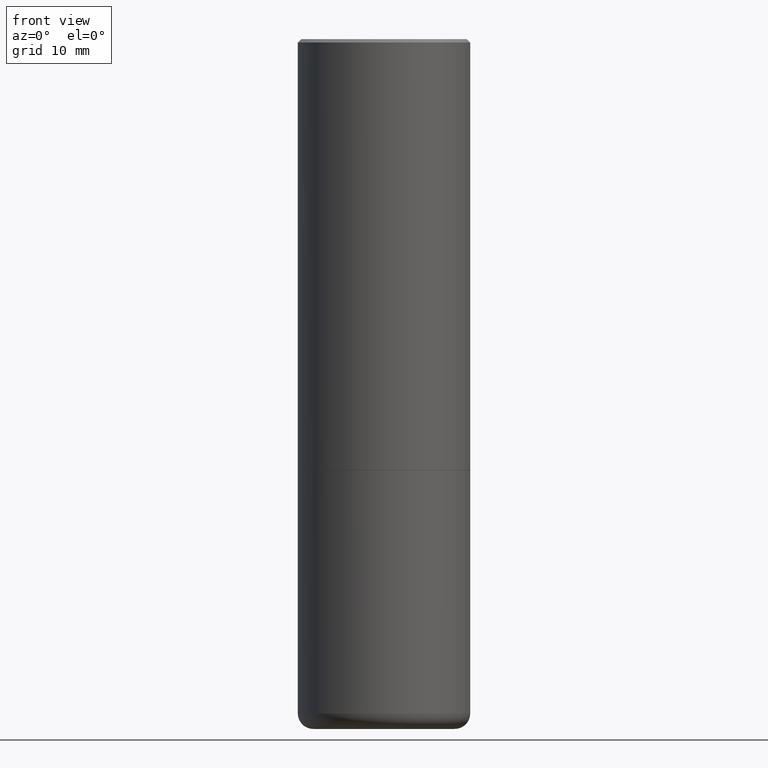
[diagram: clean part render]
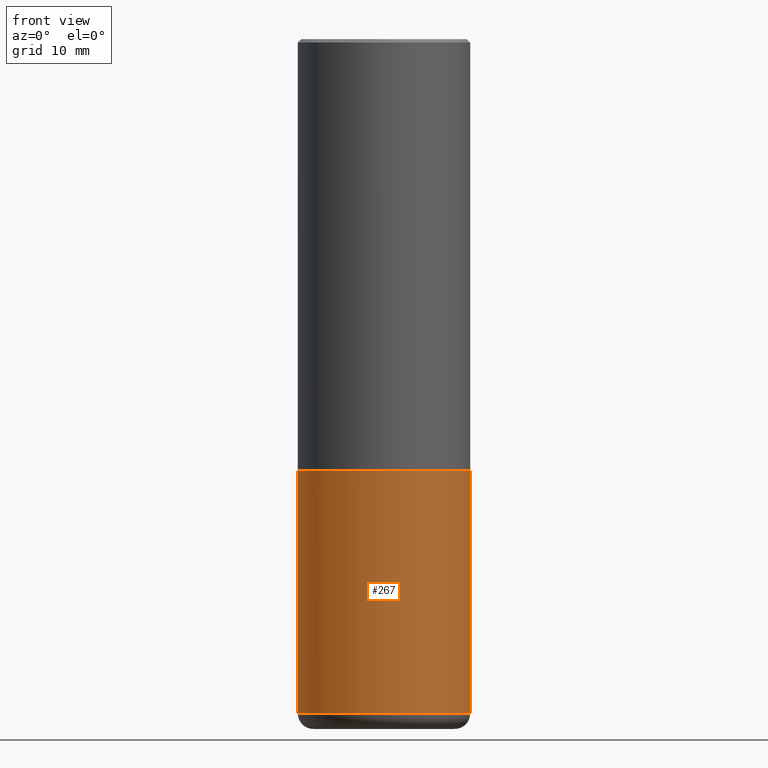
[diagram: same view with one face highlighted and labeled with its STEP entity id]
A machine part, front view. The second image highlights one B-rep face of the part: STEP entity #267.
In plain terms, the highlighted cylindrical surface (partial cylindrical patch) has radius 12.7 mm, axis along (-0, 0, 1).
Its self-contained STEP definition (entity closure, byte-faithful):
#1 = CARTESIAN_POINT ( 'NONE',  ( -0.5000000000000000000, -7.637699335114127230E-15, -2.500000000000000000 ) ) ;
#6 = FACE_OUTER_BOUND ( 'NONE', #436, .T. ) ;
#25 = AXIS2_PLACEMENT_3D ( 'NONE', #374, #264, #407 ) ;
#60 = ORIENTED_EDGE ( 'NONE', *, *, #428, .T. ) ;
#85 = CYLINDRICAL_SURFACE ( 'NONE', #257, 0.5000000000000000000 ) ;
#102 = LINE ( 'NONE', #270, #405 ) ;
#103 = EDGE_CURVE ( 'NONE', #232, #376, #383, .T. ) ;
#133 = CARTESIAN_POINT ( 'NONE',  ( 0.5000000000000000000, -3.491481338843133355E-15, 2.438088387897967896E-29 ) ) ;
#135 = DIRECTION ( 'NONE',  ( -2.445468806185136877E-29, 3.491481338843145188E-15, 1.000000000000000000 ) ) ;
#136 = VERTEX_POINT ( 'NONE', #377 ) ;
#141 = VERTEX_POINT ( 'NONE', #275 ) ;
#157 = VECTOR ( 'NONE', #135, 39.37007874015748143 ) ;
#167 = DIRECTION ( 'NONE',  ( -2.445468806185136597E-29, 3.491481338843145583E-15, 1.000000000000000000 ) ) ;
#205 = ORIENTED_EDGE ( 'NONE', *, *, #390, .F. ) ;
#212 = DIRECTION ( 'NONE',  ( 1.000000000000000000, -6.982962677686269077E-15, 0.000000000000000000 ) ) ;
#232 = VERTEX_POINT ( 'NONE', #1 ) ;
#241 = CARTESIAN_POINT ( 'NONE',  ( 6.113672015462842613E-29, -8.728703347107864943E-15, -2.500000000000000000 ) ) ;
#246 = CIRCLE ( 'NONE', #25, 0.5000000000000000000 ) ;
#257 = AXIS2_PLACEMENT_3D ( 'NONE', #326, #292, #296 ) ;
#264 = DIRECTION ( 'NONE',  ( -2.445468806185136597E-29, 3.491481338843145583E-15, 1.000000000000000000 ) ) ;
#267 = ADVANCED_FACE ( 'NONE', ( #6 ), #85, .T. ) ;
#270 = CARTESIAN_POINT ( 'NONE',  ( -0.5000000000000000000, 3.552713678800500929E-15, -2.459467545127452891E-29 ) ) ;
#275 = CARTESIAN_POINT ( 'NONE',  ( -0.5000000000000000000, -7.637699335114127230E-15, -3.910123341872087988 ) ) ;
#281 = AXIS2_PLACEMENT_3D ( 'NONE', #241, #167, #212 ) ;
#292 = DIRECTION ( 'NONE',  ( -2.445468806185136597E-29, 3.491481338843145583E-15, 1.000000000000000000 ) ) ;
#296 = DIRECTION ( 'NONE',  ( 1.000000000000000000, -6.982962677686266711E-15, 4.876176775795935793E-29 ) ) ;
#326 = CARTESIAN_POINT ( 'NONE',  ( 0.000000000000000000, 0.000000000000000000, 0.000000000000000000 ) ) ;
#333 = CARTESIAN_POINT ( 'NONE',  ( 0.5000000000000000000, -1.222018468595099830E-14, -2.500000000000000000 ) ) ;
#374 = CARTESIAN_POINT ( 'NONE',  ( 9.562084660884571289E-29, -1.365212268072139138E-14, -3.910123341872087988 ) ) ;
#375 = DIRECTION ( 'NONE',  ( -2.445468806185136877E-29, 3.491481338843145188E-15, 1.000000000000000000 ) ) ;
#376 = VERTEX_POINT ( 'NONE', #333 ) ;
#377 = CARTESIAN_POINT ( 'NONE',  ( 0.5000000000000000000, -1.714360401956452473E-14, -3.910123341872087988 ) ) ;
#383 = CIRCLE ( 'NONE', #281, 0.5000000000000000000 ) ;
#386 = ORIENTED_EDGE ( 'NONE', *, *, #413, .T. ) ;
#390 = EDGE_CURVE ( 'NONE', #141, #232, #102, .T. ) ;
#402 = ORIENTED_EDGE ( 'NONE', *, *, #103, .F. ) ;
#405 = VECTOR ( 'NONE', #375, 39.37007874015748143 ) ;
#407 = DIRECTION ( 'NONE',  ( 1.000000000000000000, -6.982962677686266711E-15, 0.000000000000000000 ) ) ;
#413 = EDGE_CURVE ( 'NONE', #141, #136, #246, .T. ) ;
#428 = EDGE_CURVE ( 'NONE', #136, #376, #437, .T. ) ;
#436 = EDGE_LOOP ( 'NONE', ( #205, #386, #60, #402 ) ) ;
#437 = LINE ( 'NONE', #133, #157 ) ;